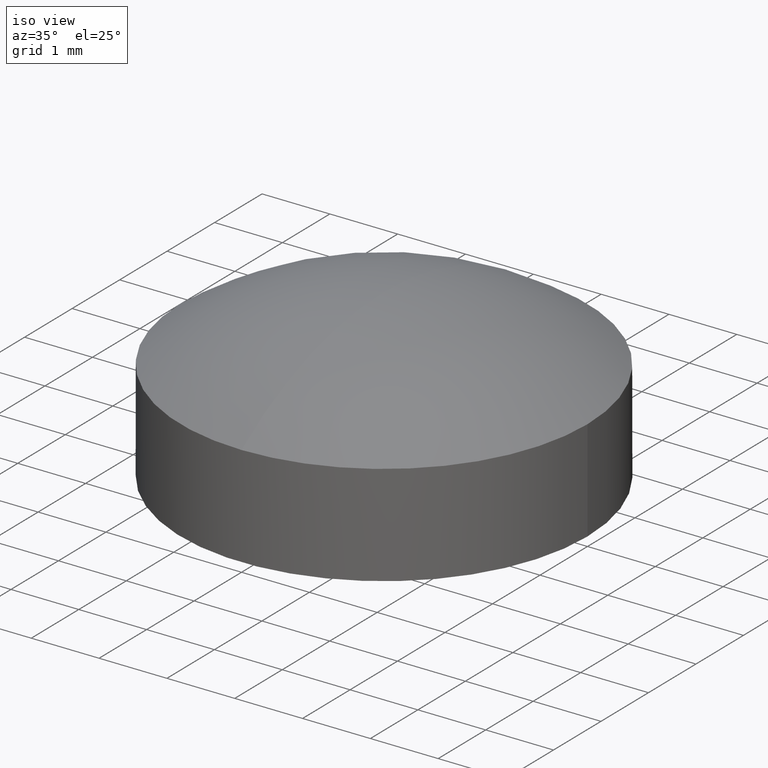
[diagram: clean part render]
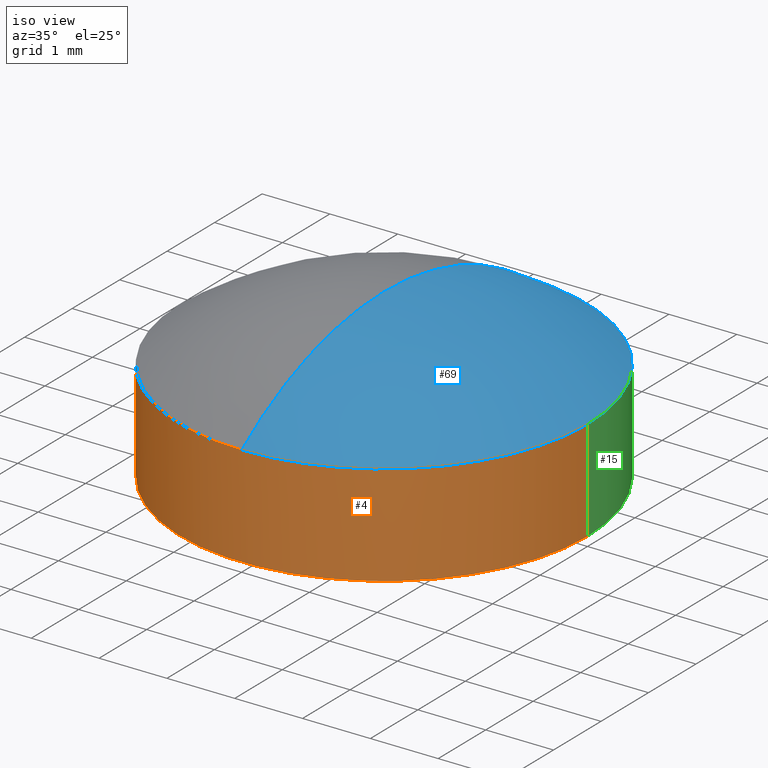
[diagram: same view with three faces highlighted in distinct colors, each labeled with its STEP entity id]
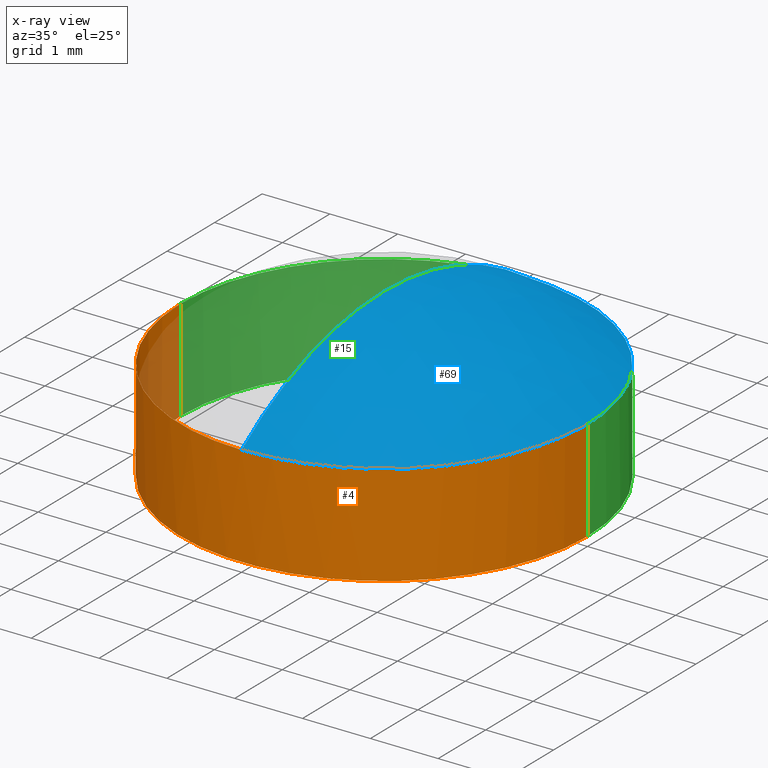
[diagram: x-ray of the same camera — body ghosted, the three highlighted faces saturated]
A machine part, iso view with three faces highlighted in distinct colors.
The next image is the same camera in x-ray (body ghosted, the three faces saturated) — at least one of them is partly hidden behind the body in this view.
Their STEP definitions:

[orange] entity #4 — the highlighted cylindrical surface (partial cylindrical patch) has radius 3 mm, axis along (-0, -0, 1).
#1 = VERTEX_POINT ( 'NONE', #44 ) ;
#2 = ORIENTED_EDGE ( 'NONE', *, *, #22, .F. ) ;
#3 = ORIENTED_EDGE ( 'NONE', *, *, #65, .F. ) ;
#4 = ADVANCED_FACE ( 'NONE', ( #34 ), #86, .T. ) ;
#5 = EDGE_LOOP ( 'NONE', ( #11, #6, #67, #3, #2 ) ) ;
#6 = ORIENTED_EDGE ( 'NONE', *, *, #9, .T. ) ;
#9 = EDGE_CURVE ( 'NONE', #1, #38, #80, .T. ) ;
#11 = ORIENTED_EDGE ( 'NONE', *, *, #41, .F. ) ;
#14 = VERTEX_POINT ( 'NONE', #121 ) ;
#22 = EDGE_CURVE ( 'NONE', #36, #14, #171, .T. ) ;
#26 = EDGE_CURVE ( 'NONE', #38, #40, #168, .T. ) ;
#34 = FACE_OUTER_BOUND ( 'NONE', #5, .T. ) ;
#36 = VERTEX_POINT ( 'NONE', #161 ) ;
#38 = VERTEX_POINT ( 'NONE', #201 ) ;
#40 = VERTEX_POINT ( 'NONE', #196 ) ;
#41 = EDGE_CURVE ( 'NONE', #1, #36, #198, .T. ) ;
#44 = CARTESIAN_POINT ( 'NONE',  ( -2.999999999999999100, 3.673819061467130800E-016, -1.230000000000000200 ) ) ;
#65 = EDGE_CURVE ( 'NONE', #14, #40, #199, .T. ) ;
#67 = ORIENTED_EDGE ( 'NONE', *, *, #26, .T. ) ;
#73 = DIRECTION ( 'NONE',  ( 1.000000000000000000, 0.0000000000000000000, 0.0000000000000000000 ) ) ;
#74 = DIRECTION ( 'NONE',  ( -0.0000000000000000000, -0.0000000000000000000, 1.000000000000000000 ) ) ;
#75 = CARTESIAN_POINT ( 'NONE',  ( 0.0000000000000000000, 0.0000000000000000000, -1.230000000000000200 ) ) ;
#76 = AXIS2_PLACEMENT_3D ( 'NONE', #75, #74, #73 ) ;
#80 = CIRCLE ( 'NONE', #76, 2.999999999999999100 ) ;
#81 = DIRECTION ( 'NONE',  ( 1.000000000000000000, 0.0000000000000000000, 0.0000000000000000000 ) ) ;
#82 = DIRECTION ( 'NONE',  ( -0.0000000000000000000, -0.0000000000000000000, 1.000000000000000000 ) ) ;
#83 = CARTESIAN_POINT ( 'NONE',  ( 0.0000000000000000000, 0.0000000000000000000, 4.308132045400366600 ) ) ;
#86 = CYLINDRICAL_SURFACE ( 'NONE', #95, 2.999999999999999100 ) ;
#95 = AXIS2_PLACEMENT_3D ( 'NONE', #83, #82, #81 ) ;
#121 = CARTESIAN_POINT ( 'NONE',  ( -3.673819061467129300E-016, -2.999999999999998200, 0.2659885331902224200 ) ) ;
#161 = CARTESIAN_POINT ( 'NONE',  ( -2.999999999999999100, 3.673819061467130800E-016, 0.2659885331902219800 ) ) ;
#166 = VECTOR ( 'NONE', #176, 1000.000000000000000 ) ;
#167 = CARTESIAN_POINT ( 'NONE',  ( 2.999999999999999100, 0.0000000000000000000, 4.308132045400366600 ) ) ;
#168 = LINE ( 'NONE', #167, #166 ) ;
#171 = CIRCLE ( 'NONE', #173, 2.999999999999999100 ) ;
#172 = DIRECTION ( 'NONE',  ( 1.000000000000000000, 0.0000000000000000000, 0.0000000000000000000 ) ) ;
#173 = AXIS2_PLACEMENT_3D ( 'NONE', #181, #179, #172 ) ;
#176 = DIRECTION ( 'NONE',  ( -0.0000000000000000000, -0.0000000000000000000, 1.000000000000000000 ) ) ;
#179 = DIRECTION ( 'NONE',  ( -0.0000000000000000000, -0.0000000000000000000, 1.000000000000000000 ) ) ;
#181 = CARTESIAN_POINT ( 'NONE',  ( 0.0000000000000000000, 0.0000000000000000000, 0.2659885331902219800 ) ) ;
#185 = DIRECTION ( 'NONE',  ( 1.000000000000000000, 0.0000000000000000000, 0.0000000000000000000 ) ) ;
#186 = DIRECTION ( 'NONE',  ( -0.0000000000000000000, -0.0000000000000000000, 1.000000000000000000 ) ) ;
#187 = CARTESIAN_POINT ( 'NONE',  ( 0.0000000000000000000, 0.0000000000000000000, 0.2659885331902219800 ) ) ;
#188 = AXIS2_PLACEMENT_3D ( 'NONE', #187, #186, #185 ) ;
#193 = DIRECTION ( 'NONE',  ( -0.0000000000000000000, -0.0000000000000000000, 1.000000000000000000 ) ) ;
#194 = VECTOR ( 'NONE', #193, 1000.000000000000000 ) ;
#195 = CARTESIAN_POINT ( 'NONE',  ( -2.999999999999999100, 3.673819061467130800E-016, 4.308132045400366600 ) ) ;
#196 = CARTESIAN_POINT ( 'NONE',  ( 2.999999999999999100, 0.0000000000000000000, 0.2659885331902219800 ) ) ;
#198 = LINE ( 'NONE', #195, #194 ) ;
#199 = CIRCLE ( 'NONE', #188, 2.999999999999999100 ) ;
#201 = CARTESIAN_POINT ( 'NONE',  ( 2.999999999999999100, 0.0000000000000000000, -1.230000000000000200 ) ) ;

[blue] entity #69 — the highlighted spherical surface has radius 5.15 mm.
#7 = ORIENTED_EDGE ( 'NONE', *, *, #68, .T. ) ;
#8 = ORIENTED_EDGE ( 'NONE', *, *, #65, .T. ) ;
#14 = VERTEX_POINT ( 'NONE', #121 ) ;
#16 = EDGE_CURVE ( 'NONE', #40, #30, #137, .T. ) ;
#24 = EDGE_CURVE ( 'NONE', #14, #31, #152, .T. ) ;
#30 = VERTEX_POINT ( 'NONE', #175 ) ;
#31 = VERTEX_POINT ( 'NONE', #174 ) ;
#40 = VERTEX_POINT ( 'NONE', #196 ) ;
#50 = DIRECTION ( 'NONE',  ( 0.0000000000000000000, 0.0000000000000000000, -1.000000000000000000 ) ) ;
#55 = DIRECTION ( 'NONE',  ( 1.000000000000000000, 0.0000000000000000000, 0.0000000000000000000 ) ) ;
#62 = EDGE_LOOP ( 'NONE', ( #70, #8, #64, #7 ) ) ;
#64 = ORIENTED_EDGE ( 'NONE', *, *, #16, .T. ) ;
#65 = EDGE_CURVE ( 'NONE', #14, #40, #199, .T. ) ;
#68 = EDGE_CURVE ( 'NONE', #30, #31, #192, .T. ) ;
#69 = ADVANCED_FACE ( 'NONE', ( #212 ), #260, .T. ) ;
#70 = ORIENTED_EDGE ( 'NONE', *, *, #24, .F. ) ;
#121 = CARTESIAN_POINT ( 'NONE',  ( -3.673819061467129300E-016, -2.999999999999998200, 0.2659885331902224200 ) ) ;
#134 = DIRECTION ( 'NONE',  ( 1.000000000000000000, 0.0000000000000000000, 0.0000000000000000000 ) ) ;
#137 = CIRCLE ( 'NONE', #142, 2.999999999999999100 ) ;
#142 = AXIS2_PLACEMENT_3D ( 'NONE', #147, #149, #134 ) ;
#147 = CARTESIAN_POINT ( 'NONE',  ( 0.0000000000000000000, 0.0000000000000000000, 0.2659885331902219800 ) ) ;
#149 = DIRECTION ( 'NONE',  ( -0.0000000000000000000, -0.0000000000000000000, 1.000000000000000000 ) ) ;
#152 = CIRCLE ( 'NONE', #184, 5.149999999999998600 ) ;
#170 = DIRECTION ( 'NONE',  ( -1.224606353822377000E-016, -1.000000000000000000, 0.0000000000000000000 ) ) ;
#174 = CARTESIAN_POINT ( 'NONE',  ( 0.0000000000000000000, 3.153361361092620100E-016, 1.230000000000002000 ) ) ;
#175 = CARTESIAN_POINT ( 'NONE',  ( 0.0000000000000000000, 2.999999999999998200, 0.2659885331902224200 ) ) ;
#182 = DIRECTION ( 'NONE',  ( -1.000000000000000000, 1.224606353822377300E-016, 0.0000000000000000000 ) ) ;
#183 = CARTESIAN_POINT ( 'NONE',  ( 0.0000000000000000000, 0.0000000000000000000, -3.919999999999996400 ) ) ;
#184 = AXIS2_PLACEMENT_3D ( 'NONE', #183, #182, #170 ) ;
#185 = DIRECTION ( 'NONE',  ( 1.000000000000000000, 0.0000000000000000000, 0.0000000000000000000 ) ) ;
#186 = DIRECTION ( 'NONE',  ( -0.0000000000000000000, -0.0000000000000000000, 1.000000000000000000 ) ) ;
#187 = CARTESIAN_POINT ( 'NONE',  ( 0.0000000000000000000, 0.0000000000000000000, 0.2659885331902219800 ) ) ;
#188 = AXIS2_PLACEMENT_3D ( 'NONE', #187, #186, #185 ) ;
#190 = CARTESIAN_POINT ( 'NONE',  ( 0.0000000000000000000, 0.0000000000000000000, -3.919999999999996400 ) ) ;
#191 = AXIS2_PLACEMENT_3D ( 'NONE', #190, #55, #50 ) ;
#192 = CIRCLE ( 'NONE', #191, 5.149999999999998600 ) ;
#196 = CARTESIAN_POINT ( 'NONE',  ( 2.999999999999999100, 0.0000000000000000000, 0.2659885331902219800 ) ) ;
#199 = CIRCLE ( 'NONE', #188, 2.999999999999999100 ) ;
#212 = FACE_OUTER_BOUND ( 'NONE', #62, .T. ) ;
#255 = DIRECTION ( 'NONE',  ( 0.0000000000000000000, 1.000000000000000000, 0.0000000000000000000 ) ) ;
#256 = DIRECTION ( 'NONE',  ( -1.000000000000000000, 0.0000000000000000000, 0.0000000000000000000 ) ) ;
#257 = CARTESIAN_POINT ( 'NONE',  ( 0.0000000000000000000, 0.0000000000000000000, -3.919999999999996400 ) ) ;
#258 = AXIS2_PLACEMENT_3D ( 'NONE', #257, #256, #255 ) ;
#260 = SPHERICAL_SURFACE ( 'NONE', #258, 5.149999999999998600 ) ;

[green] entity #15 — the highlighted cylindrical surface (partial cylindrical patch) has radius 3 mm, axis along (-0, -0, 1).
#1 = VERTEX_POINT ( 'NONE', #44 ) ;
#15 = ADVANCED_FACE ( 'NONE', ( #124 ), #130, .T. ) ;
#16 = EDGE_CURVE ( 'NONE', #40, #30, #137, .T. ) ;
#19 = EDGE_CURVE ( 'NONE', #38, #1, #60, .T. ) ;
#23 = EDGE_CURVE ( 'NONE', #30, #36, #177, .T. ) ;
#25 = ORIENTED_EDGE ( 'NONE', *, *, #19, .T. ) ;
#26 = EDGE_CURVE ( 'NONE', #38, #40, #168, .T. ) ;
#27 = ORIENTED_EDGE ( 'NONE', *, *, #23, .F. ) ;
#28 = ORIENTED_EDGE ( 'NONE', *, *, #41, .T. ) ;
#30 = VERTEX_POINT ( 'NONE', #175 ) ;
#35 = EDGE_LOOP ( 'NONE', ( #25, #28, #27, #42, #39 ) ) ;
#36 = VERTEX_POINT ( 'NONE', #161 ) ;
#38 = VERTEX_POINT ( 'NONE', #201 ) ;
#39 = ORIENTED_EDGE ( 'NONE', *, *, #26, .F. ) ;
#40 = VERTEX_POINT ( 'NONE', #196 ) ;
#41 = EDGE_CURVE ( 'NONE', #1, #36, #198, .T. ) ;
#42 = ORIENTED_EDGE ( 'NONE', *, *, #16, .F. ) ;
#44 = CARTESIAN_POINT ( 'NONE',  ( -2.999999999999999100, 3.673819061467130800E-016, -1.230000000000000200 ) ) ;
#51 = AXIS2_PLACEMENT_3D ( 'NONE', #58, #53, #56 ) ;
#53 = DIRECTION ( 'NONE',  ( -0.0000000000000000000, -0.0000000000000000000, 1.000000000000000000 ) ) ;
#56 = DIRECTION ( 'NONE',  ( 1.000000000000000000, 0.0000000000000000000, 0.0000000000000000000 ) ) ;
#58 = CARTESIAN_POINT ( 'NONE',  ( 0.0000000000000000000, 0.0000000000000000000, -1.230000000000000200 ) ) ;
#60 = CIRCLE ( 'NONE', #51, 2.999999999999999100 ) ;
#124 = FACE_OUTER_BOUND ( 'NONE', #35, .T. ) ;
#127 = CARTESIAN_POINT ( 'NONE',  ( 0.0000000000000000000, 0.0000000000000000000, 4.308132045400366600 ) ) ;
#128 = DIRECTION ( 'NONE',  ( 1.000000000000000000, 0.0000000000000000000, 0.0000000000000000000 ) ) ;
#129 = AXIS2_PLACEMENT_3D ( 'NONE', #127, #131, #128 ) ;
#130 = CYLINDRICAL_SURFACE ( 'NONE', #129, 2.999999999999999100 ) ;
#131 = DIRECTION ( 'NONE',  ( -0.0000000000000000000, -0.0000000000000000000, 1.000000000000000000 ) ) ;
#134 = DIRECTION ( 'NONE',  ( 1.000000000000000000, 0.0000000000000000000, 0.0000000000000000000 ) ) ;
#137 = CIRCLE ( 'NONE', #142, 2.999999999999999100 ) ;
#142 = AXIS2_PLACEMENT_3D ( 'NONE', #147, #149, #134 ) ;
#147 = CARTESIAN_POINT ( 'NONE',  ( 0.0000000000000000000, 0.0000000000000000000, 0.2659885331902219800 ) ) ;
#149 = DIRECTION ( 'NONE',  ( -0.0000000000000000000, -0.0000000000000000000, 1.000000000000000000 ) ) ;
#151 = AXIS2_PLACEMENT_3D ( 'NONE', #169, #180, #178 ) ;
#161 = CARTESIAN_POINT ( 'NONE',  ( -2.999999999999999100, 3.673819061467130800E-016, 0.2659885331902219800 ) ) ;
#166 = VECTOR ( 'NONE', #176, 1000.000000000000000 ) ;
#167 = CARTESIAN_POINT ( 'NONE',  ( 2.999999999999999100, 0.0000000000000000000, 4.308132045400366600 ) ) ;
#168 = LINE ( 'NONE', #167, #166 ) ;
#169 = CARTESIAN_POINT ( 'NONE',  ( 0.0000000000000000000, 0.0000000000000000000, 0.2659885331902219800 ) ) ;
#175 = CARTESIAN_POINT ( 'NONE',  ( 0.0000000000000000000, 2.999999999999998200, 0.2659885331902224200 ) ) ;
#176 = DIRECTION ( 'NONE',  ( -0.0000000000000000000, -0.0000000000000000000, 1.000000000000000000 ) ) ;
#177 = CIRCLE ( 'NONE', #151, 2.999999999999999100 ) ;
#178 = DIRECTION ( 'NONE',  ( 1.000000000000000000, 0.0000000000000000000, 0.0000000000000000000 ) ) ;
#180 = DIRECTION ( 'NONE',  ( -0.0000000000000000000, -0.0000000000000000000, 1.000000000000000000 ) ) ;
#193 = DIRECTION ( 'NONE',  ( -0.0000000000000000000, -0.0000000000000000000, 1.000000000000000000 ) ) ;
#194 = VECTOR ( 'NONE', #193, 1000.000000000000000 ) ;
#195 = CARTESIAN_POINT ( 'NONE',  ( -2.999999999999999100, 3.673819061467130800E-016, 4.308132045400366600 ) ) ;
#196 = CARTESIAN_POINT ( 'NONE',  ( 2.999999999999999100, 0.0000000000000000000, 0.2659885331902219800 ) ) ;
#198 = LINE ( 'NONE', #195, #194 ) ;
#201 = CARTESIAN_POINT ( 'NONE',  ( 2.999999999999999100, 0.0000000000000000000, -1.230000000000000200 ) ) ;